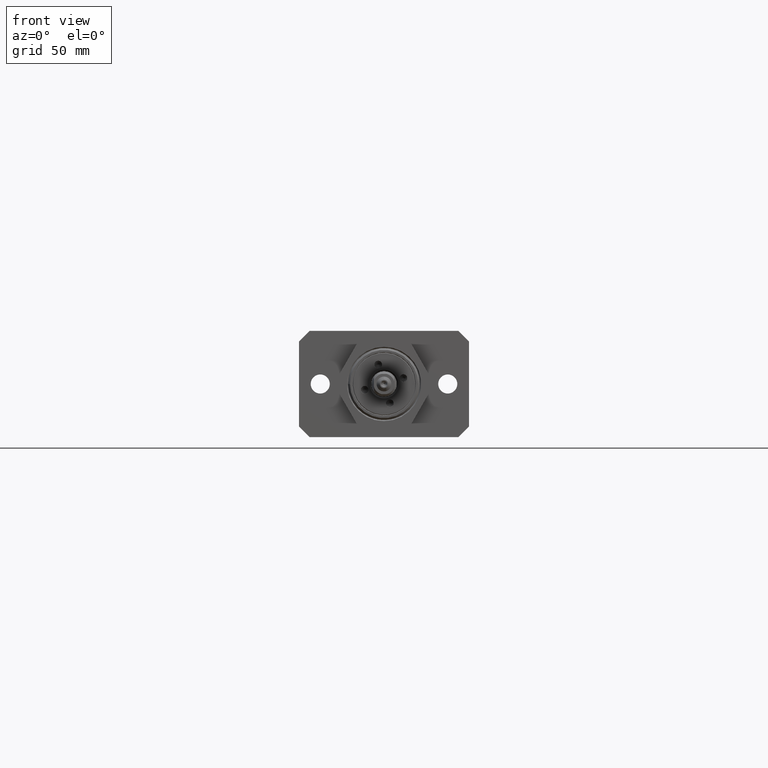
[diagram: clean part render]
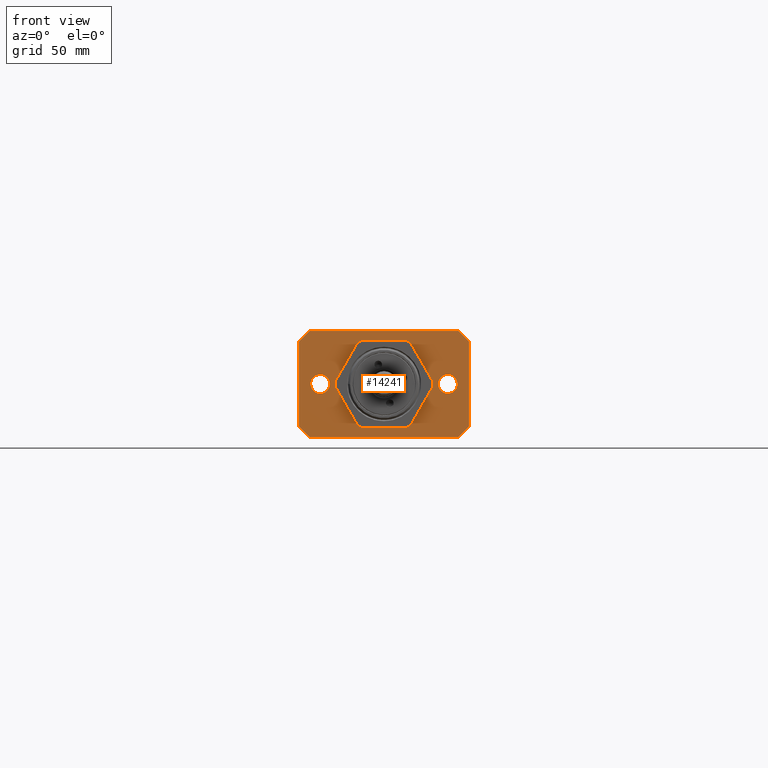
[diagram: same view with one face highlighted and labeled with its STEP entity id]
A machine part, front view. The second image highlights one B-rep face of the part: STEP entity #14241.
In plain terms, the highlighted planar face has unit normal (-0, 1, 0).
Its self-contained STEP definition (entity closure, byte-faithful):
#441=FACE_BOUND('',#2840,.T.);
#442=FACE_BOUND('',#2841,.T.);
#443=FACE_BOUND('',#2842,.T.);
#948=PLANE('',#16003);
#1761=FACE_OUTER_BOUND('',#2839,.T.);
#2839=EDGE_LOOP('',(#12071,#12072,#12073,#12074,#12075,#12076,#12077,#12078));
#2840=EDGE_LOOP('',(#12079));
#2841=EDGE_LOOP('',(#12080));
#2842=EDGE_LOOP('',(#12081,#12082,#12083,#12084,#12085,#12086,#12087,#12088,
#12089,#12090,#12091,#12092));
#3753=CIRCLE('',#16004,4.5);
#3754=CIRCLE('',#16005,4.5);
#3755=CIRCLE('',#16006,23.);
#3756=CIRCLE('',#16007,23.);
#3757=CIRCLE('',#16008,23.);
#3758=CIRCLE('',#16009,23.);
#3759=CIRCLE('',#16010,23.);
#3760=CIRCLE('',#16011,23.);
#4514=LINE('',#25923,#5294);
#4515=LINE('',#25925,#5295);
#4516=LINE('',#25927,#5296);
#4517=LINE('',#25929,#5297);
#4518=LINE('',#25931,#5298);
#4519=LINE('',#25933,#5299);
#4520=LINE('',#25935,#5300);
#4521=LINE('',#25936,#5301);
#4522=LINE('',#25945,#5302);
#4523=LINE('',#25949,#5303);
#4524=LINE('',#25953,#5304);
#4525=LINE('',#25957,#5305);
#4526=LINE('',#25961,#5306);
#4527=LINE('',#25964,#5307);
#5294=VECTOR('',#20214,10.);
#5295=VECTOR('',#20215,10.);
#5296=VECTOR('',#20216,10.);
#5297=VECTOR('',#20217,10.);
#5298=VECTOR('',#20218,10.);
#5299=VECTOR('',#20219,10.);
#5300=VECTOR('',#20220,10.);
#5301=VECTOR('',#20221,10.);
#5302=VECTOR('',#20228,10.);
#5303=VECTOR('',#20231,10.);
#5304=VECTOR('',#20234,10.);
#5305=VECTOR('',#20237,10.);
#5306=VECTOR('',#20240,10.);
#5307=VECTOR('',#20243,10.);
#6632=VERTEX_POINT('',#25921);
#6633=VERTEX_POINT('',#25922);
#6634=VERTEX_POINT('',#25924);
#6635=VERTEX_POINT('',#25926);
#6636=VERTEX_POINT('',#25928);
#6637=VERTEX_POINT('',#25930);
#6638=VERTEX_POINT('',#25932);
#6639=VERTEX_POINT('',#25934);
#6640=VERTEX_POINT('',#25937);
#6641=VERTEX_POINT('',#25939);
#6642=VERTEX_POINT('',#25941);
#6643=VERTEX_POINT('',#25942);
#6644=VERTEX_POINT('',#25944);
#6645=VERTEX_POINT('',#25946);
#6646=VERTEX_POINT('',#25948);
#6647=VERTEX_POINT('',#25950);
#6648=VERTEX_POINT('',#25952);
#6649=VERTEX_POINT('',#25954);
#6650=VERTEX_POINT('',#25956);
#6651=VERTEX_POINT('',#25958);
#6652=VERTEX_POINT('',#25960);
#6653=VERTEX_POINT('',#25962);
#8468=EDGE_CURVE('',#6632,#6633,#4514,.T.);
#8469=EDGE_CURVE('',#6634,#6632,#4515,.T.);
#8470=EDGE_CURVE('',#6635,#6634,#4516,.T.);
#8471=EDGE_CURVE('',#6636,#6635,#4517,.T.);
#8472=EDGE_CURVE('',#6637,#6636,#4518,.T.);
#8473=EDGE_CURVE('',#6638,#6637,#4519,.T.);
#8474=EDGE_CURVE('',#6639,#6638,#4520,.T.);
#8475=EDGE_CURVE('',#6633,#6639,#4521,.T.);
#8476=EDGE_CURVE('',#6640,#6640,#3753,.T.);
#8477=EDGE_CURVE('',#6641,#6641,#3754,.T.);
#8478=EDGE_CURVE('',#6642,#6643,#3755,.T.);
#8479=EDGE_CURVE('',#6643,#6644,#4522,.T.);
#8480=EDGE_CURVE('',#6644,#6645,#3756,.T.);
#8481=EDGE_CURVE('',#6645,#6646,#4523,.T.);
#8482=EDGE_CURVE('',#6646,#6647,#3757,.T.);
#8483=EDGE_CURVE('',#6647,#6648,#4524,.T.);
#8484=EDGE_CURVE('',#6648,#6649,#3758,.T.);
#8485=EDGE_CURVE('',#6649,#6650,#4525,.T.);
#8486=EDGE_CURVE('',#6650,#6651,#3759,.T.);
#8487=EDGE_CURVE('',#6651,#6652,#4526,.T.);
#8488=EDGE_CURVE('',#6652,#6653,#3760,.T.);
#8489=EDGE_CURVE('',#6653,#6642,#4527,.T.);
#12071=ORIENTED_EDGE('',*,*,#8468,.F.);
#12072=ORIENTED_EDGE('',*,*,#8469,.F.);
#12073=ORIENTED_EDGE('',*,*,#8470,.F.);
#12074=ORIENTED_EDGE('',*,*,#8471,.F.);
#12075=ORIENTED_EDGE('',*,*,#8472,.F.);
#12076=ORIENTED_EDGE('',*,*,#8473,.F.);
#12077=ORIENTED_EDGE('',*,*,#8474,.F.);
#12078=ORIENTED_EDGE('',*,*,#8475,.F.);
#12079=ORIENTED_EDGE('',*,*,#8476,.T.);
#12080=ORIENTED_EDGE('',*,*,#8477,.T.);
#12081=ORIENTED_EDGE('',*,*,#8478,.T.);
#12082=ORIENTED_EDGE('',*,*,#8479,.T.);
#12083=ORIENTED_EDGE('',*,*,#8480,.T.);
#12084=ORIENTED_EDGE('',*,*,#8481,.T.);
#12085=ORIENTED_EDGE('',*,*,#8482,.T.);
#12086=ORIENTED_EDGE('',*,*,#8483,.T.);
#12087=ORIENTED_EDGE('',*,*,#8484,.T.);
#12088=ORIENTED_EDGE('',*,*,#8485,.T.);
#12089=ORIENTED_EDGE('',*,*,#8486,.T.);
#12090=ORIENTED_EDGE('',*,*,#8487,.T.);
#12091=ORIENTED_EDGE('',*,*,#8488,.T.);
#12092=ORIENTED_EDGE('',*,*,#8489,.T.);
#14241=ADVANCED_FACE('',(#1761,#441,#442,#443),#948,.F.);
#16003=AXIS2_PLACEMENT_3D('',#25920,#20212,#20213);
#16004=AXIS2_PLACEMENT_3D('',#25938,#20222,#20223);
#16005=AXIS2_PLACEMENT_3D('',#25940,#20224,#20225);
#16006=AXIS2_PLACEMENT_3D('',#25943,#20226,#20227);
#16007=AXIS2_PLACEMENT_3D('',#25947,#20229,#20230);
#16008=AXIS2_PLACEMENT_3D('',#25951,#20232,#20233);
#16009=AXIS2_PLACEMENT_3D('',#25955,#20235,#20236);
#16010=AXIS2_PLACEMENT_3D('',#25959,#20238,#20239);
#16011=AXIS2_PLACEMENT_3D('',#25963,#20241,#20242);
#20212=DIRECTION('center_axis',(-1.61738765212037E-16,1.,4.93038065763132E-32));
#20213=DIRECTION('ref_axis',(-1.,-1.61738765212037E-16,-1.38777878078144E-15));
#20214=DIRECTION('',(-0.707106781186546,-1.1436657766217E-16,-0.707106781186548));
#20215=DIRECTION('',(1.38777878078144E-15,2.73761432967371E-31,-1.));
#20216=DIRECTION('',(0.707106781186548,1.14366577662171E-16,-0.707106781186546));
#20217=DIRECTION('',(1.,1.61738765212037E-16,1.38777878078144E-15));
#20218=DIRECTION('',(0.707106781186546,1.1436657766217E-16,0.707106781186548));
#20219=DIRECTION('',(-1.38777878078144E-15,-2.73761432967371E-31,1.));
#20220=DIRECTION('',(-0.707106781186548,-1.14366577662171E-16,0.707106781186546));
#20221=DIRECTION('',(-1.,-1.61738765212037E-16,-1.38777878078144E-15));
#20222=DIRECTION('center_axis',(-1.61738765212037E-16,1.,4.93038065763132E-32));
#20223=DIRECTION('ref_axis',(-1.,-1.61738765212037E-16,-1.38777878078144E-15));
#20224=DIRECTION('center_axis',(-1.61738765212037E-16,1.,4.93038065763132E-32));
#20225=DIRECTION('ref_axis',(-1.,-1.61738765212037E-16,-1.38777878078144E-15));
#20226=DIRECTION('center_axis',(-5.50741813050413E-16,1.,1.57110821849668E-16));
#20227=DIRECTION('ref_axis',(-0.545189451040329,-1.68550603267562E-16,-0.838312866699745));
#20228=DIRECTION('',(0.499999999999994,4.11432869456467E-16,-0.866025403784442));
#20229=DIRECTION('center_axis',(-5.50741813050413E-16,1.,1.57110821849668E-16));
#20230=DIRECTION('ref_axis',(-0.998594964401502,-5.58293536348286E-16,0.0529914811263446));
#20231=DIRECTION('',(-0.500000000000006,-1.39308943593947E-16,-0.866025403784435));
#20232=DIRECTION('center_axis',(-5.50741813050413E-16,1.,1.57110821849668E-16));
#20233=DIRECTION('ref_axis',(-0.453405513361172,-3.89742933080725E-16,0.89130434782609));
#20234=DIRECTION('',(-1.,-5.50741813050414E-16,7.0308855600036E-15));
#20235=DIRECTION('center_axis',(-5.50741813050413E-16,1.,1.57110821849668E-16));
#20236=DIRECTION('ref_axis',(0.545189451040329,1.68550603267562E-16,0.838312866699745));
#20237=DIRECTION('',(-0.499999999999994,-4.11432869456467E-16,0.866025403784442));
#20238=DIRECTION('center_axis',(-5.50741813050413E-16,1.,1.57110821849668E-16));
#20239=DIRECTION('ref_axis',(0.998594964401502,5.58293536348286E-16,-0.0529914811263446));
#20240=DIRECTION('',(0.500000000000007,1.39308943593947E-16,0.866025403784435));
#20241=DIRECTION('center_axis',(-5.50741813050413E-16,1.,1.57110821849668E-16));
#20242=DIRECTION('ref_axis',(0.453405513361172,3.89742933080725E-16,-0.89130434782609));
#20243=DIRECTION('',(1.,5.50741813050414E-16,-7.66965899612984E-15));
#25920=CARTESIAN_POINT('Origin',(-3.50324616081204E-45,8.7581154020301E-46,
-1.77635683940025E-14));
#25921=CARTESIAN_POINT('',(40.,6.4695506084815E-15,-20.));
#25922=CARTESIAN_POINT('',(35.,5.66085678242132E-15,-25.));
#25923=CARTESIAN_POINT('',(33.75,5.45868332590627E-15,-26.25));
#25924=CARTESIAN_POINT('',(40.,6.46955060848149E-15,20.));
#25925=CARTESIAN_POINT('',(40.,6.46955060848149E-15,25.));
#25926=CARTESIAN_POINT('',(35.,5.6608567824213E-15,25.));
#25927=CARTESIAN_POINT('',(33.75,5.45868332590626E-15,26.25));
#25928=CARTESIAN_POINT('',(-35.,-5.66085678242132E-15,24.9999999999999));
#25929=CARTESIAN_POINT('',(-40.,-6.4695506084815E-15,24.9999999999999));
#25930=CARTESIAN_POINT('',(-40.,-6.4695506084815E-15,19.9999999999999));
#25931=CARTESIAN_POINT('',(-33.75,-5.45868332590627E-15,26.2499999999999));
#25932=CARTESIAN_POINT('',(-40.,-6.46955060848149E-15,-20.0000000000001));
#25933=CARTESIAN_POINT('',(-40.,-6.46955060848149E-15,-25.0000000000001));
#25934=CARTESIAN_POINT('',(-35.,-5.6608567824213E-15,-25.0000000000001));
#25935=CARTESIAN_POINT('',(-33.75,-5.45868332590626E-15,-26.2500000000001));
#25936=CARTESIAN_POINT('',(40.,6.4695506084815E-15,-25.));
#25937=CARTESIAN_POINT('',(-25.5,-4.12433851290695E-15,-4.26007881172941E-14));
#25938=CARTESIAN_POINT('Origin',(-30.,-4.85216295636112E-15,-4.82947015711943E-14));
#25939=CARTESIAN_POINT('',(34.5,5.57998739981529E-15,2.9563708483341E-14));
#25940=CARTESIAN_POINT('Origin',(30.,4.85216295636112E-15,2.38697950294408E-14));
#25941=CARTESIAN_POINT('',(10.4283268073073,2.52254376502046E-15,20.4999999999999));
#25942=CARTESIAN_POINT('',(12.5393573739276,3.87666387515392E-15,19.2811959340941));
#25943=CARTESIAN_POINT('Origin',(-5.60881039411039E-15,-9.07162067451854E-31,
-1.77635683940025E-14));
#25944=CARTESIAN_POINT('',(22.9676841812346,1.24577767190743E-14,1.21880406590556));
#25945=CARTESIAN_POINT('',(12.5393573739276,3.87666387515392E-15,19.2811959340941));
#25946=CARTESIAN_POINT('',(22.9676841812345,1.28407513360106E-14,-1.21880406590594));
#25947=CARTESIAN_POINT('Origin',(-5.60881039411039E-15,-9.07162067451854E-31,
-1.77635683940025E-14));
#25948=CARTESIAN_POINT('',(12.5393573739273,9.93523295405381E-15,-19.2811959340943));
#25949=CARTESIAN_POINT('',(22.9676841812345,1.28407513360106E-14,-1.21880406590594));
#25950=CARTESIAN_POINT('',(10.428326807307,8.96408746085666E-15,-20.5000000000001));
#25951=CARTESIAN_POINT('Origin',(-5.60881039411039E-15,-9.07162067451854E-31,
-1.77635683940025E-14));
#25952=CARTESIAN_POINT('',(-10.4283268073073,-2.52254376502044E-15,-20.4999999999999));
#25953=CARTESIAN_POINT('',(10.428326807307,8.96408746085666E-15,-20.5000000000001));
#25954=CARTESIAN_POINT('',(-12.5393573739276,-3.87666387515393E-15,-19.2811959340941));
#25955=CARTESIAN_POINT('Origin',(-5.60881039411039E-15,-9.07162067451854E-31,
-1.77635683940025E-14));
#25956=CARTESIAN_POINT('',(-22.9676841812346,-1.24577767190743E-14,-1.21880406590562));
#25957=CARTESIAN_POINT('',(-12.5393573739276,-3.87666387515393E-15,-19.2811959340941));
#25958=CARTESIAN_POINT('',(-22.9676841812345,-1.28407513360106E-14,1.21880406590591));
#25959=CARTESIAN_POINT('Origin',(-5.60881039411039E-15,-9.07162067451854E-31,
-1.77635683940025E-14));
#25960=CARTESIAN_POINT('',(-12.5393573739273,-9.9352329540538E-15,19.2811959340943));
#25961=CARTESIAN_POINT('',(-22.9676841812345,-1.28407513360106E-14,1.21880406590591));
#25962=CARTESIAN_POINT('',(-10.428326807307,-8.96408746085667E-15,20.5000000000001));
#25963=CARTESIAN_POINT('Origin',(-5.60881039411039E-15,-9.07162067451854E-31,
-1.77635683940025E-14));
#25964=CARTESIAN_POINT('',(-10.428326807307,-8.96408746085667E-15,20.5000000000001));